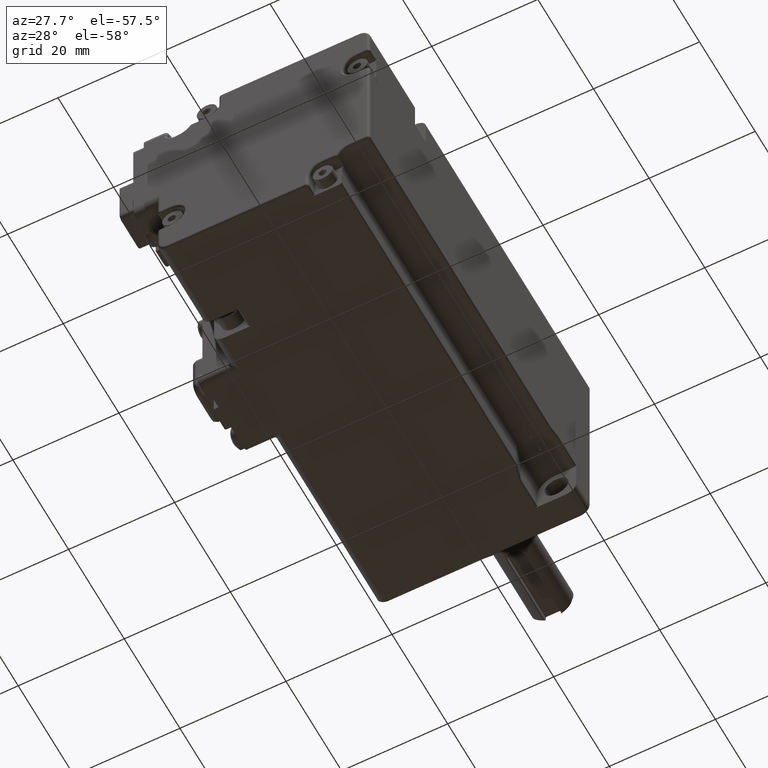
[diagram: clean part render]
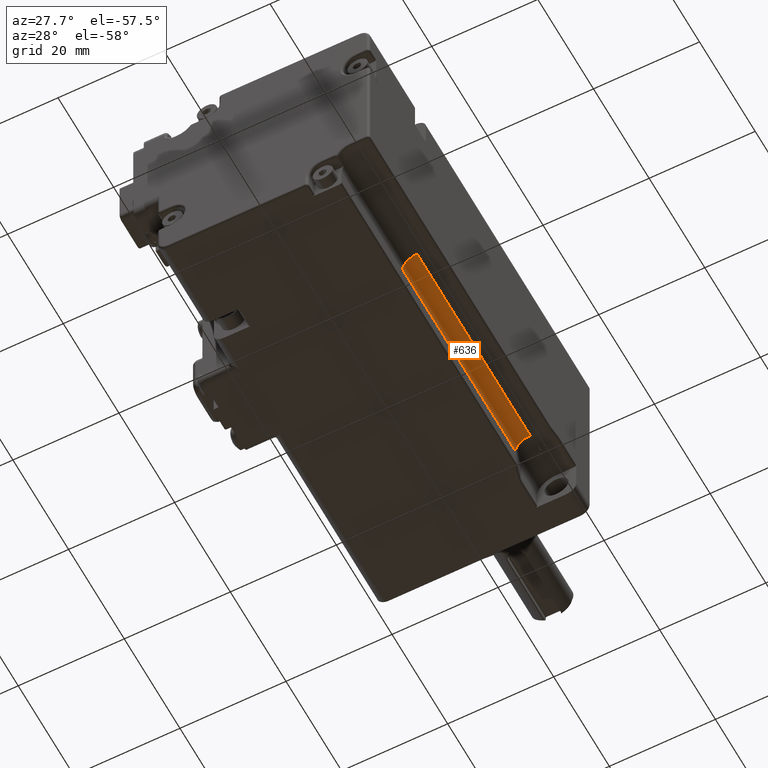
[diagram: same view with one face highlighted and labeled with its STEP entity id]
A machine part, auxiliary view. The second image highlights one B-rep face of the part: STEP entity #636.
In plain terms, the highlighted cylindrical surface (edge-blend (fillet) strip) has radius 2.7635 mm, axis along (0, 1, 0).
Its self-contained STEP definition (entity closure, byte-faithful):
#636 = ADVANCED_FACE ( 'NONE', ( #17922 ), #6448, .F. ) ;
#1258 = CARTESIAN_POINT ( 'NONE',  ( 14.06783483325002493, 40.57970638068038483, -14.57559321861645252 ) ) ;
#1347 = CARTESIAN_POINT ( 'NONE',  ( 16.26179892679564176, 40.58954837640043678, -13.50000049680245695 ) ) ;
#1717 = EDGE_CURVE ( 'NONE', #20560, #6794, #4038, .T. ) ;
#1737 = CARTESIAN_POINT ( 'NONE',  ( 16.26345596729058940, 5.000000000000004441, -13.49999999999999822 ) ) ;
#2671 = CARTESIAN_POINT ( 'NONE',  ( 13.86593051599272108, 40.57880041355129208, -14.87727252597181860 ) ) ;
#2791 = CARTESIAN_POINT ( 'NONE',  ( 13.49999999999999645, 0.000000000000000000, -16.26345596729058940 ) ) ;
#2933 = CARTESIAN_POINT ( 'NONE',  ( 15.90007023122159602, 40.58792601944350054, -13.51809749657197202 ) ) ;
#3271 = EDGE_LOOP ( 'NONE', ( #8646, #17690, #3630, #15556, #14933 ) ) ;
#3630 = ORIENTED_EDGE ( 'NONE', *, *, #17808, .F. ) ;
#3954 = EDGE_CURVE ( 'NONE', #23785, #5710, #21650, .T. ) ;
#4038 = CIRCLE ( 'NONE', #25113, 2.763455967290592952 ) ;
#4402 = AXIS2_PLACEMENT_3D ( 'NONE', #24031, #6322, #4632 ) ;
#4632 = DIRECTION ( 'NONE',  ( 0.000000000000000000, 0.000000000000000000, 1.000000000000000000 ) ) ;
#4716 =( BOUNDED_CURVE ( )  B_SPLINE_CURVE ( 3, ( #1347, #10767, #18629, #6904 ),
 .UNSPECIFIED., .F., .T. ) 
 B_SPLINE_CURVE_WITH_KNOTS ( ( 4, 4 ),
 ( 6.282585672599821258, 6.283185307179586232 ),
 .UNSPECIFIED. ) 
 CURVE ( )  GEOMETRIC_REPRESENTATION_ITEM ( )  RATIONAL_B_SPLINE_CURVE ( ( 1.000000000000000000, 0.9999999700365310717, 0.9999999700365310717, 1.000000000000000000 ) ) 
 REPRESENTATION_ITEM ( '' )  );
#5710 = VERTEX_POINT ( 'NONE', #23441 ) ;
#6322 = DIRECTION ( 'NONE',  ( 0.000000000000000000, 1.000000000000000000, 0.000000000000000000 ) ) ;
#6448 = CYLINDRICAL_SURFACE ( 'NONE', #4402, 2.763455967290594728 ) ;
#6684 = CARTESIAN_POINT ( 'NONE',  ( 14.18214713569803997, 40.58021929801990524, -14.43663259373984964 ) ) ;
#6794 = VERTEX_POINT ( 'NONE', #2791 ) ;
#6904 = CARTESIAN_POINT ( 'NONE',  ( 16.26345596729058940, 40.58955725711699358, -13.49999999999999822 ) ) ;
#7311 = EDGE_CURVE ( 'NONE', #5710, #8427, #4716, .T. ) ;
#7313 = EDGE_CURVE ( 'NONE', #6794, #23785, #22672, .T. ) ;
#7667 = LINE ( 'NONE', #1737, #17937 ) ;
#8427 = VERTEX_POINT ( 'NONE', #21097 ) ;
#8646 = ORIENTED_EDGE ( 'NONE', *, *, #3954, .T. ) ;
#9642 = CARTESIAN_POINT ( 'NONE',  ( 16.26345596729058940, 0.000000000000000000, -13.49999999999999822 ) ) ;
#9942 = DIRECTION ( 'NONE',  ( -0.000000000000000000, -1.000000000000000000, 0.000000000000000000 ) ) ;
#10767 = CARTESIAN_POINT ( 'NONE',  ( 16.26235125812710436, 40.58955601849866213, -13.50000016560545113 ) ) ;
#10938 = CARTESIAN_POINT ( 'NONE',  ( 15.54725861198879677, 40.58634351819981134, -13.58836649697682120 ) ) ;
#11288 = DIRECTION ( 'NONE',  ( 0.000000000000000000, 0.000000000000000000, -1.000000000000000000 ) ) ;
#12875 = CARTESIAN_POINT ( 'NONE',  ( 16.26179892679564176, 40.58954837640043678, -13.50000049680245695 ) ) ;
#14813 = CARTESIAN_POINT ( 'NONE',  ( 13.78006686620308230, 40.57841511911217935, -15.03797736077313729 ) ) ;
#14933 = ORIENTED_EDGE ( 'NONE', *, *, #7313, .T. ) ;
#15556 = ORIENTED_EDGE ( 'NONE', *, *, #1717, .T. ) ;
#16601 = CARTESIAN_POINT ( 'NONE',  ( 14.57898601646777514, 40.58199980130410012, -14.06532089314178613 ) ) ;
#17690 = ORIENTED_EDGE ( 'NONE', *, *, #7311, .T. ) ;
#17808 = EDGE_CURVE ( 'NONE', #20560, #8427, #7667, .T. ) ;
#17922 = FACE_OUTER_BOUND ( 'NONE', #3271, .T. ) ;
#17937 = VECTOR ( 'NONE', #25272, 1000.000000000000000 ) ;
#18542 = CARTESIAN_POINT ( 'NONE',  ( 14.43688270746251945, 40.58136223980864798, -14.18192763044346449 ) ) ;
#18629 = CARTESIAN_POINT ( 'NONE',  ( 16.26290361269643370, 40.58955725711702911, -13.50000000000000000 ) ) ;
#18810 = CARTESIAN_POINT ( 'NONE',  ( 16.07940673019620093, 40.58873036997227501, -13.50010986395490775 ) ) ;
#19740 = CARTESIAN_POINT ( 'NONE',  ( 13.57327284392327194, 40.57748715978392084, -15.53618360908064311 ) ) ;
#20129 = CARTESIAN_POINT ( 'NONE',  ( 13.49999999999999645, 40.57715833639003478, -16.26345596729058940 ) ) ;
#20351 = CARTESIAN_POINT ( 'NONE',  ( 15.03763667913329272, 40.58405744446313435, -13.78015060745141440 ) ) ;
#20560 = VERTEX_POINT ( 'NONE', #9642 ) ;
#20627 = CARTESIAN_POINT ( 'NONE',  ( 14.87907331615361528, 40.58334610354623351, -13.86497280190061332 ) ) ;
#20981 = CARTESIAN_POINT ( 'NONE',  ( 16.26345596729058940, 0.000000000000000000, -16.26345596729058940 ) ) ;
#21097 = CARTESIAN_POINT ( 'NONE',  ( 16.26345596729058940, 40.58955725711699358, -13.49999999999999822 ) ) ;
#21522 = VECTOR ( 'NONE', #22926, 1000.000000000000000 ) ;
#21650 = B_SPLINE_CURVE_WITH_KNOTS ( 'NONE', 3,
 ( #21694, #23763, #19740, #14813, #2671, #1258, #6684, #18542, #16601, #20627, #20351, #24393, #10938, #2933, #18810, #12875 ),
 .UNSPECIFIED., .F., .F.,
 ( 4, 2, 2, 2, 2, 2, 2, 4 ),
 ( 0.000000000000000000, 0.001087707118974794683, 0.001631560678462194410, 0.002175414237949594137, 0.002719267797436994080, 0.003263121356924393590, 0.003806974916411793967, 0.004350828475899193477 ),
 .UNSPECIFIED. ) ;
#21694 = CARTESIAN_POINT ( 'NONE',  ( 13.49999999999999645, 40.57715833639003478, -16.26345596729058940 ) ) ;
#22672 = LINE ( 'NONE', #24607, #21522 ) ;
#22926 = DIRECTION ( 'NONE',  ( 0.000000000000000000, 1.000000000000000000, 0.000000000000000000 ) ) ;
#23441 = CARTESIAN_POINT ( 'NONE',  ( 16.26179892679564176, 40.58954837640043678, -13.50000049680245695 ) ) ;
#23763 = CARTESIAN_POINT ( 'NONE',  ( 13.49999999999999645, 40.57715833639006320, -15.89866773637427855 ) ) ;
#23785 = VERTEX_POINT ( 'NONE', #20129 ) ;
#24031 = CARTESIAN_POINT ( 'NONE',  ( 16.26345596729058940, 5.000000000000004441, -16.26345596729058940 ) ) ;
#24393 = CARTESIAN_POINT ( 'NONE',  ( 15.37196140332962635, 40.58555719348895252, -13.64149565488071936 ) ) ;
#24607 = CARTESIAN_POINT ( 'NONE',  ( 13.49999999999999645, 5.000000000000004441, -16.26345596729058940 ) ) ;
#25113 = AXIS2_PLACEMENT_3D ( 'NONE', #20981, #9942, #11288 ) ;
#25272 = DIRECTION ( 'NONE',  ( 0.000000000000000000, 1.000000000000000000, 0.000000000000000000 ) ) ;